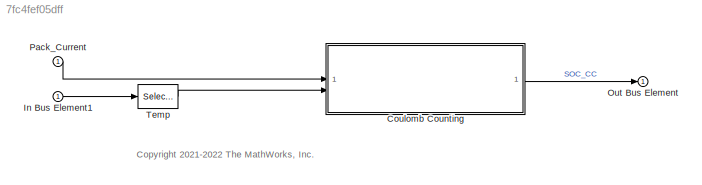
MODEL slx_7fc4fef05dff
KIND model
CONFIG AbsTol = auto
CONFIG EnableMultiTasking = off
CONFIG FixedStep = 0.1
CONFIG MaxStep = auto
CONFIG MinStep = auto
CONFIG RelTol = 1e-3
CONFIG SampleTimeConstraint = Unconstrained
CONFIG SolverName = FixedStepDiscrete
CONFIG StartTime = 0.0
CONFIG StopTime = 10000
WORKSPACE source: mxarray member
WORKSPACE BatteryLUT: object (value not decoded)
WORKSPACE Ts: Simulink.Parameter (value not decoded)
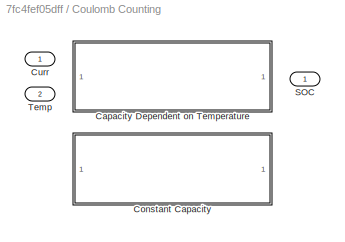
BLOCK [SubSystem] Coulomb Counting
  LabelModeActiveChoice = Constant Capacity
  Variant = on
  VariantControl = SocAlgo==1
  VariantControlMode = label
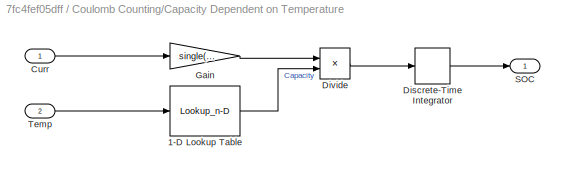
BLOCK [SubSystem] Coulomb Counting/Capacity Dependent on Temperature
  VariantControl = Capacity Dependent on Temperature
BLOCK [Lookup_n-D] Coulomb Counting/Capacity Dependent on Temperature/1-D Lookup Table
  BreakpointsForDimension1 = single(BatteryLUT(1).Temperature_LUT)
  InputPortMap = u0
  InternalRulePriority = Speed
  NumberOfTableDimensions = 1
  RndMeth = Simplest
  Table = single(BatteryLUT(1).Capacity_LUT)*PlntBattNumCellPar
BLOCK [Inport] Coulomb Counting/Capacity Dependent on Temperature/Curr
BLOCK [DiscreteIntegrator] Coulomb Counting/Capacity Dependent on Temperature/Discrete-Time Integrator
  ICPrevOutput = DiscIntNeverNeededParam
  ICPrevScaledInput = DiscIntNeverNeededParam
  InitialCondition = single(PlntBattSocInit)
  InitialConditionSetting = Auto
  LimitOutput = on
  LowerSaturationLimit = 0
  SampleTime = -1
  UpperSaturationLimit = 1
BLOCK [Product] Coulomb Counting/Capacity Dependent on Temperature/Divide
  Inputs = */
  NameLocation = top
BLOCK [Gain] Coulomb Counting/Capacity Dependent on Temperature/Gain
  Gain = single(1/3600)
BLOCK [Outport] Coulomb Counting/Capacity Dependent on Temperature/SOC
  VectorParamsAs1DForOutWhenUnconnected = off
BLOCK [Inport] Coulomb Counting/Capacity Dependent on Temperature/Temp
  Port = 2
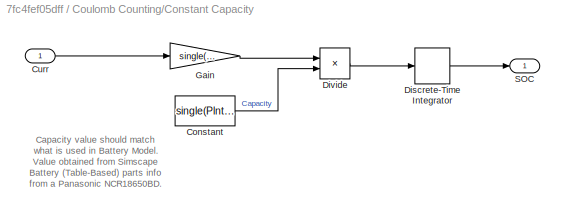
BLOCK [SubSystem] Coulomb Counting/Constant Capacity
  VariantControl = Constant Capacity
BLOCK [Constant] Coulomb Counting/Constant Capacity/Constant
  SampleTime = -1
  Value = single(PlntBattChrgMax*PlntBattNumCellPar)
BLOCK [Inport] Coulomb Counting/Constant Capacity/Curr
  OutDataTypeStr = single
BLOCK [DiscreteIntegrator] Coulomb Counting/Constant Capacity/Discrete-Time Integrator
  ICPrevOutput = DiscIntNeverNeededParam
  ICPrevScaledInput = DiscIntNeverNeededParam
  InitialCondition = single(PlntBattSocInit)
  InitialConditionSetting = Auto
  LimitOutput = on
  LowerSaturationLimit = 0
  SampleTime = -1
  UpperSaturationLimit = 1
BLOCK [Product] Coulomb Counting/Constant Capacity/Divide
  Inputs = */
  NameLocation = top
BLOCK [Gain] Coulomb Counting/Constant Capacity/Gain
  Gain = single(1/3600)
BLOCK [Outport] Coulomb Counting/Constant Capacity/SOC
  VectorParamsAs1DForOutWhenUnconnected = off
BLOCK [Inport] Coulomb Counting/Curr
BLOCK [Outport] Coulomb Counting/SOC
BLOCK [Inport] Coulomb Counting/Temp
  Port = 2
BLOCK [Inport] In Bus Element1
BLOCK [Outport] Out Bus Element
BLOCK [Inport] Pack_Current
BLOCK [Selector] Temp
  IndexOptions = Index vector (dialog)
  Indices = 1
  InputPortWidth = PlntBattNumCellSer
  OutputSizes = 1
ANNOTATION (root): <copyright redacted>
ANNOTATION Coulomb Counting/Constant Capacity: Capacity value should match what is used in Battery Model. Value obtained from Simscape Battery (Table-Based) parts info from a Panasonic NCR18650BD.
LINE Coulomb Counting/Capacity Dependent on Temperature/1-D Lookup Table:1 -> Coulomb Counting/Capacity Dependent on Temperature/Divide:2
LINE Coulomb Counting/Capacity Dependent on Temperature/Curr:1 -> Coulomb Counting/Capacity Dependent on Temperature/Gain:1
LINE Coulomb Counting/Capacity Dependent on Temperature/Discrete-Time Integrator:1 -> Coulomb Counting/Capacity Dependent on Temperature/SOC:1
LINE Coulomb Counting/Capacity Dependent on Temperature/Divide:1 -> Coulomb Counting/Capacity Dependent on Temperature/Discrete-Time Integrator:1
LINE Coulomb Counting/Capacity Dependent on Temperature/Gain:1 -> Coulomb Counting/Capacity Dependent on Temperature/Divide:1
LINE Coulomb Counting/Capacity Dependent on Temperature/Temp:1 -> Coulomb Counting/Capacity Dependent on Temperature/1-D Lookup Table:1
LINE Coulomb Counting/Constant Capacity/Constant:1 -> Coulomb Counting/Constant Capacity/Divide:2
LINE Coulomb Counting/Constant Capacity/Curr:1 -> Coulomb Counting/Constant Capacity/Gain:1
LINE Coulomb Counting/Constant Capacity/Discrete-Time Integrator:1 -> Coulomb Counting/Constant Capacity/SOC:1
LINE Coulomb Counting/Constant Capacity/Divide:1 -> Coulomb Counting/Constant Capacity/Discrete-Time Integrator:1
LINE Coulomb Counting/Constant Capacity/Gain:1 -> Coulomb Counting/Constant Capacity/Divide:1
LINE Coulomb Counting:1 -> Out Bus Element:1
LINE In Bus Element1:1 -> Temp:1
LINE Pack_Current:1 -> Coulomb Counting:1
LINE Temp:1 -> Coulomb Counting:2
